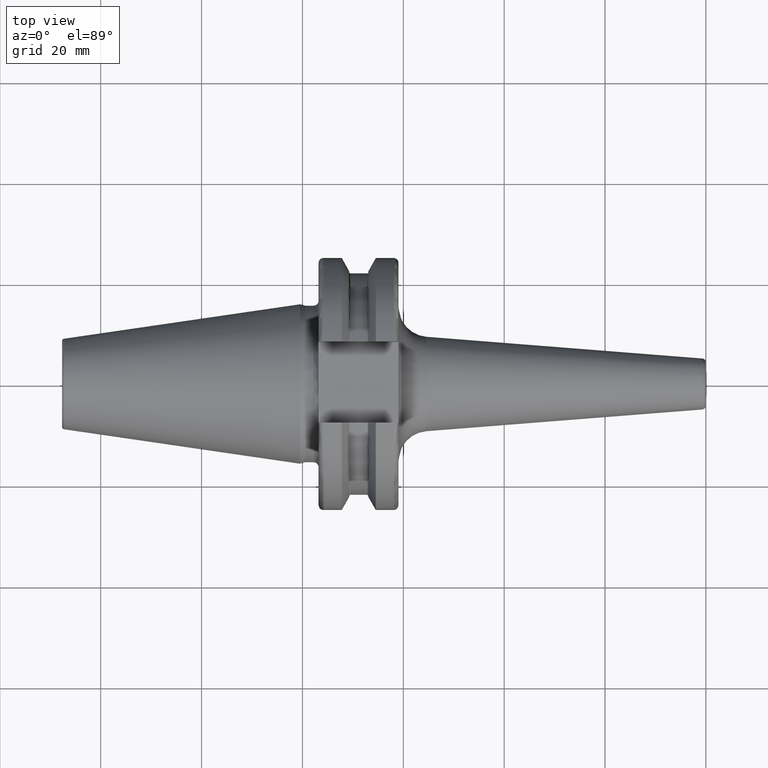
[diagram: clean part render]
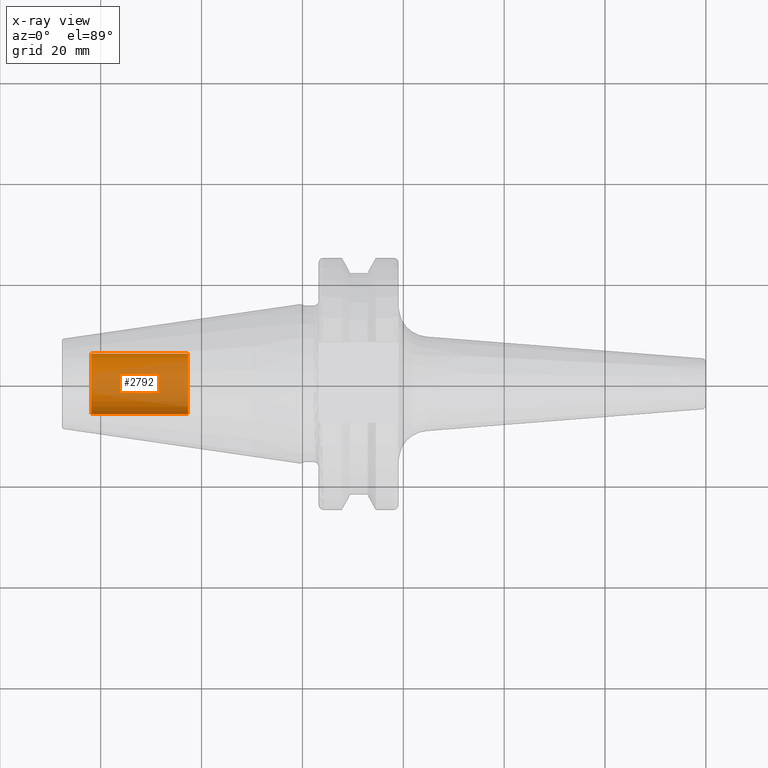
[diagram: x-ray — body ghosted, one internal face saturated and labeled with its STEP entity id]
A machine part, top view, then the same camera in x-ray: the body is ghosted and one INTERNAL B-rep face — a face not visible from any outside direction — is saturated and labeled: STEP entity #2792.
In plain terms, the highlighted cylindrical surface (edge-blend (fillet) strip) has radius 6.0027 mm, axis along (1, 0, 0).
Its self-contained STEP definition (entity closure, byte-faithful):
#2727=CARTESIAN_POINT('',(-4.19E1,0.E0,0.E0));
#2728=DIRECTION('',(-1.E0,0.E0,0.E0));
#2729=DIRECTION('',(0.E0,1.E0,0.E0));
#2730=AXIS2_PLACEMENT_3D('',#2727,#2728,#2729);
#2732=DIRECTION('',(1.E0,0.E0,0.E0));
#2733=VECTOR('',#2732,1.925E1);
#2734=CARTESIAN_POINT('',(-4.19E1,-6.00275E0,0.E0));
#2735=LINE('',#2734,#2733);
#2741=DIRECTION('',(1.E0,0.E0,0.E0));
#2742=VECTOR('',#2741,1.925E1);
#2743=CARTESIAN_POINT('',(-4.19E1,6.00275E0,0.E0));
#2744=LINE('',#2743,#2742);
#2750=CARTESIAN_POINT('',(-2.265E1,0.E0,0.E0));
#2751=DIRECTION('',(1.E0,0.E0,0.E0));
#2752=DIRECTION('',(0.E0,-1.E0,0.E0));
#2753=AXIS2_PLACEMENT_3D('',#2750,#2751,#2752);
#2765=CARTESIAN_POINT('',(-4.19E1,6.00275E0,0.E0));
#2766=CARTESIAN_POINT('',(-4.19E1,-6.00275E0,0.E0));
#2767=VERTEX_POINT('',#2765);
#2768=VERTEX_POINT('',#2766);
#2769=CARTESIAN_POINT('',(-2.265E1,6.00275E0,0.E0));
#2770=CARTESIAN_POINT('',(-2.265E1,-6.00275E0,0.E0));
#2771=VERTEX_POINT('',#2769);
#2772=VERTEX_POINT('',#2770);
#2777=CARTESIAN_POINT('',(-4.19E1,0.E0,0.E0));
#2778=DIRECTION('',(1.E0,0.E0,0.E0));
#2779=DIRECTION('',(0.E0,1.E0,0.E0));
#2780=AXIS2_PLACEMENT_3D('',#2777,#2778,#2779);
#2781=CYLINDRICAL_SURFACE('',#2780,6.00275E0);
#2783=ORIENTED_EDGE('',*,*,#2782,.T.);
#2785=ORIENTED_EDGE('',*,*,#2784,.T.);
#2787=ORIENTED_EDGE('',*,*,#2786,.T.);
#2789=ORIENTED_EDGE('',*,*,#2788,.F.);
#2790=EDGE_LOOP('',(#2783,#2785,#2787,#2789));
#2791=FACE_OUTER_BOUND('',#2790,.F.);
#2792=ADVANCED_FACE('',(#2791),#2781,.T.);
#2731=CIRCLE('',#2730,6.00275E0);
#2754=CIRCLE('',#2753,6.00275E0);
#2782=EDGE_CURVE('',#2767,#2768,#2731,.T.);
#2784=EDGE_CURVE('',#2768,#2772,#2735,.T.);
#2786=EDGE_CURVE('',#2772,#2771,#2754,.T.);
#2788=EDGE_CURVE('',#2767,#2771,#2744,.T.);